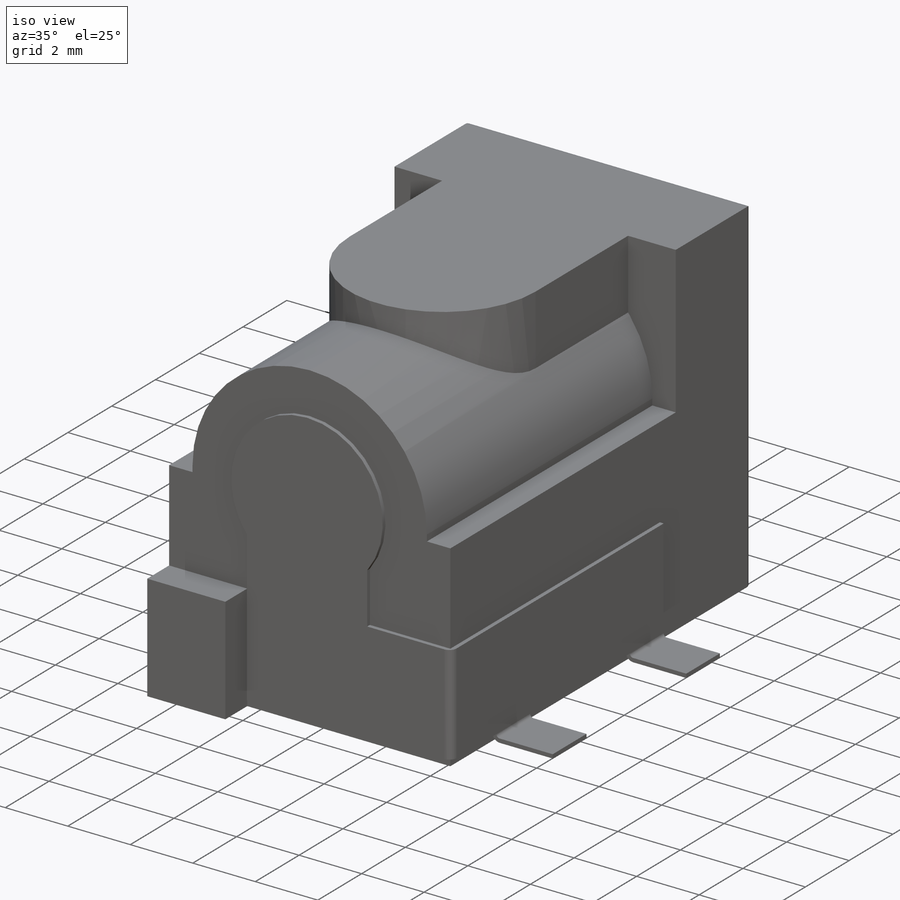
[diagram: iso view]
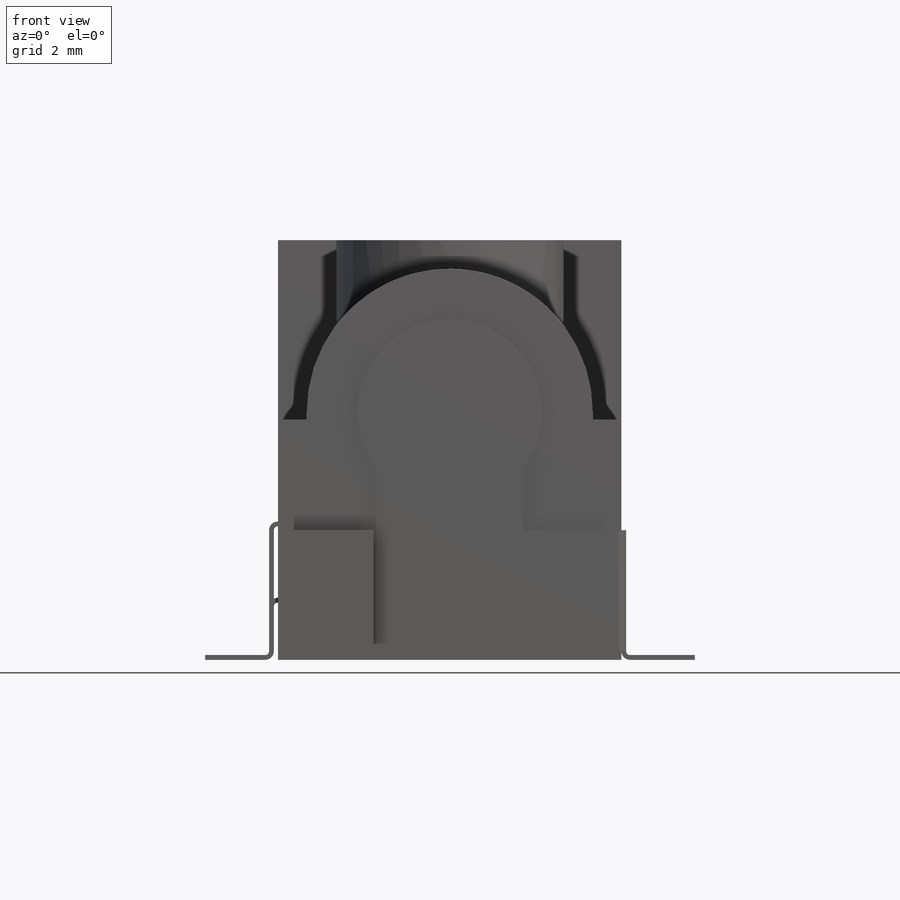
[diagram: front view]
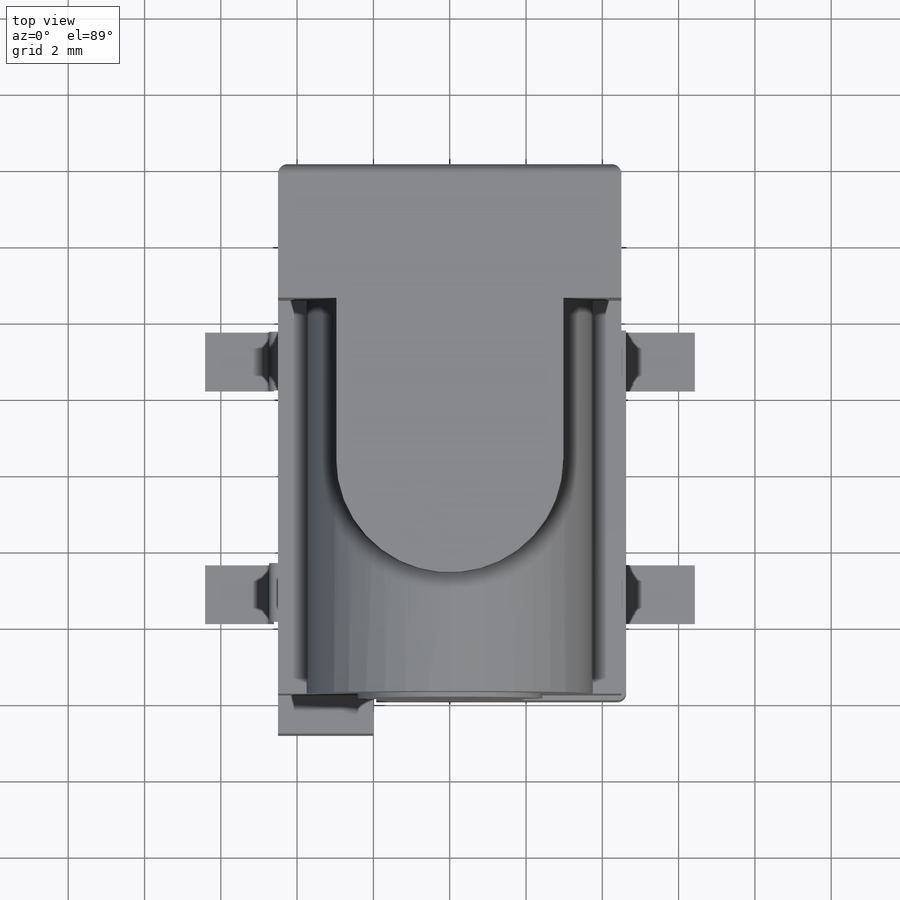
[diagram: top view]
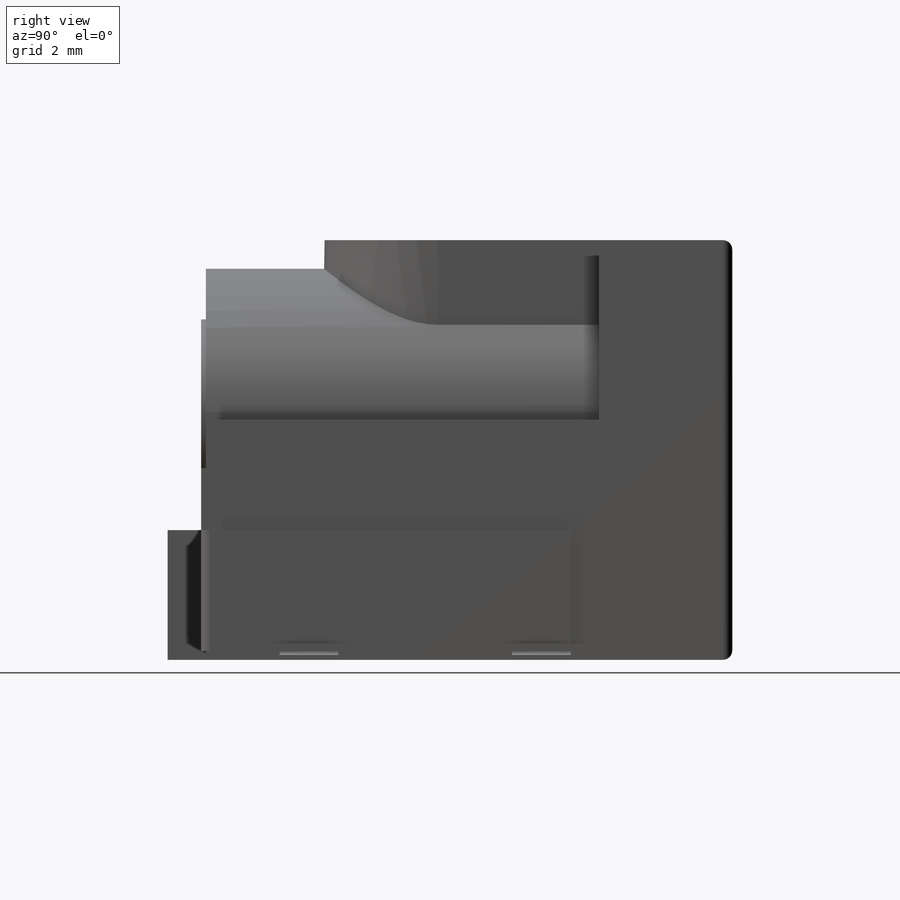
[diagram: right view]
SOLIDWORKS PART (.sldprt)
format: sldprt  version: not decoded by parser v0  size: 555,520 bytes
history: native  units: mm
features: sketch x23, sheet_metal_op x11, pattern_linear x5, extrude x4, cut_extrude x3, fillet x3, plane x3, material x1 + 7 further entries (+13 scaffold rows collapsed; 5 parser-record rows omitted)
feature tree (78):
  scaffold x13  (default folders/planes/origin — collapsed)
  material  "Material <not specified>"
  sketch  "Sketch1"  dims[c1.D3=0.252mm c1.D4=5.5mm c1.D1=9.0mm c1.D2=11.0mm c2.D3=6.5mm]
  extrude  "Boss-Extrude1"  Depth=13.8mm
  sketch  "Sketch2"  dims[D2=5.5mm D1=6.5mm]
  cut_extrude  "Cut-Extrude1"  Depth=11mm
  sketch  "Sketch3"  dims[D1=10.7mm D2=5.95mm D3=2.975mm D4=3.5mm]
  cut_extrude  "Cut-Extrude2"  Depth=0.75mm
  sketch  "Sketch4"  dims[D1=2.1mm]
  extrude  "Boss-Extrude2"  Depth=9.2mm
  fillet  "Fillet2"  Radius=1.05mm
  sketch  "Sketch6"  dims[D1=0.75mm]
  cut_extrude  "Cut-Extrude3"  Depth=3.95mm
  fillet  "Fillet3"  Radius=3.75mm
  plane  "Plane4"  Offset=0.23mm
  sketch  "Sketch9"  dims[c1.D1=0.125mm c1.D2=0.125mm c1.D3=6.55mm c1.D4=4.23mm c2.D1=0.1mm c2.D2=0.5 c2.D3=0.0mm c2.D6=500.0mm]
  sheet_metal_op  "Base-Flange1"
  sketch  "Sketch14"  dims[D1=4.85mm D2=3.4mm]
  extrude  "Boss-Extrude4"  Depth=0.125mm
  fillet  "Fillet4"  Radius=0.25mm
  plane  "Plane3"  Offset=11.1mm
  sketch  "Sketch20"  dims[c1.D1=1.8mm c1.D2=~0.347385mm c2.D1=0.105mm c2.D2=1.8mm c2.Base-Flange2=0.0]
  sheet_metal_op  "BaseBend2"
  pattern_linear  "LPattern1"  Count1=1 Count2=2 Spacing1=0.1mm Spacing2=500mm
  sketch  "Sketch27"  dims[D1=2.5mm D2=3.4mm]
  extrude  "Boss-Extrude5"  Depth=1mm
  sketch  "Sketch28"  dims[D1=1.8mm D2=3.5mm D3=0.11mm Base-Flange3=0.0]
  sheet_metal_op  "BaseBend3"
  sheet_metal_op  "BaseBend4"
  sketch  "Sketch31"  dims[D1=1.5mm D2=1.8mm D3=0.11mm Base-Flange4=0.0]
  sheet_metal_op  "BaseBend5"
  sheet_metal_op  "BaseBend6"
  sketch  "Bend-Lines1"
  sketch  "Bounding-Box1"
  plane  "Plane5"
  sheet_metal_op  "Sheet-Metal6"
  "Flat-Pattern6"
  sketch  "Bend-Lines2"
  sketch  "Bounding-Box2"
  parser-record x5  (decoder bookkeeping rows leaked as tree rows — omitted from the tree; the rows remain in map.json)
  pattern_linear  "Sheet-Metal9"  Spacing1=0.1mm Spacing2=500mm  [1 undecoded]
  sheet_metal_op  "Flat-Pattern9"
  sketch  "Bend-Lines3"
  sketch  "Bounding-Box3"
  "Flatten-<BaseBend2>1"
  pattern_linear  "Sheet-Metal10"  Spacing1=0.1mm Spacing2=500mm  [1 undecoded]
  sheet_metal_op  "Flat-Pattern10"
  sketch  "Bend-Lines4"
  sketch  "Bounding-Box4"
  "Flatten-<DerivedBend1>1"
  pattern_linear  "Sheet-Metal12"  Spacing1=0.1mm Spacing2=500mm  [1 undecoded]
  sheet_metal_op  "Flat-Pattern12"
  sketch  "Bend-Lines5"
  sketch  "Bounding-Box5"
  "Flatten-<BaseBend3>1"
  "Flatten-<BaseBend4>1"
  pattern_linear  "Sheet-Metal13"  Spacing1=0.1mm Spacing2=0mm  [1 undecoded]
  sheet_metal_op  "Flat-Pattern13"
  sketch  "Bend-Lines6"
  sketch  "Bounding-Box6"
  "Flatten-<BaseBend5>1"
  "Flatten-<BaseBend6>1"
decode coverage: 26 of 49 modeling features carry decoded parameters; 7 rows unclassified (native names shown)
note: ~ marks probable driven/reference dimensions
note: 4 parameter values undecoded
note: suppression state not decoded; provenance and decode notes live in map.json
